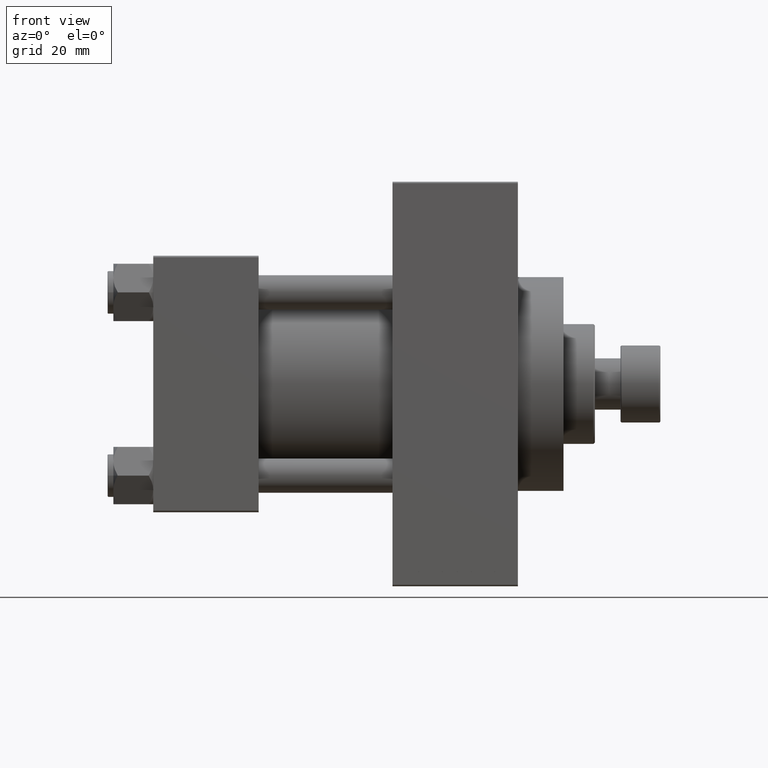
[diagram: clean part render]
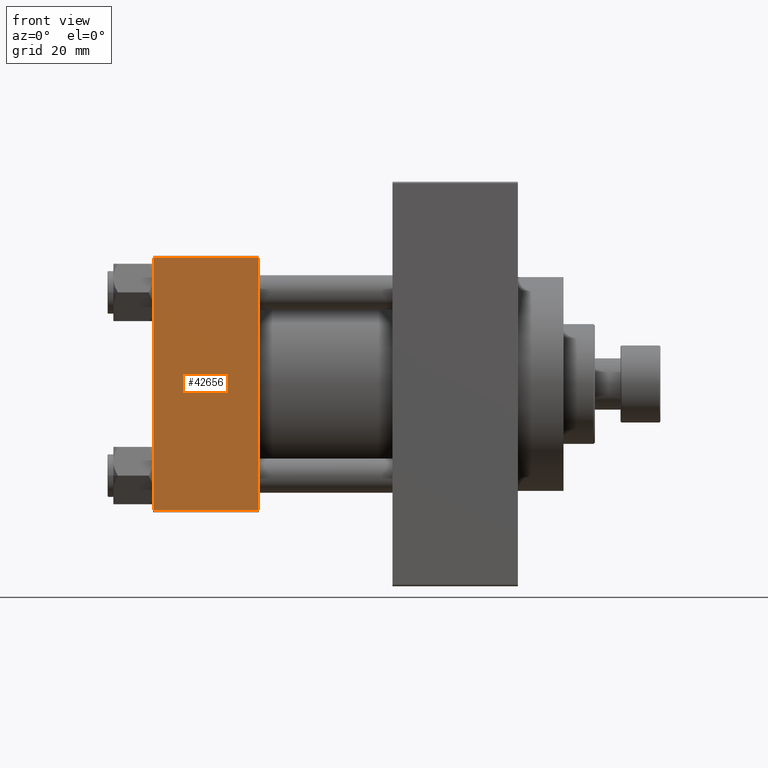
[diagram: same view with one face highlighted and labeled with its STEP entity id]
A machine part, front view. The second image highlights one B-rep face of the part: STEP entity #42656.
In plain terms, the highlighted planar face has unit normal (0, 1, 0).
Its self-contained STEP definition (entity closure, byte-faithful):
#4694 = CARTESIAN_POINT ( 'NONE',  ( 0.000000000000000000, -45.00000000000000000, -44.49999999999995737 ) ) ;
#5580 = VECTOR ( 'NONE', #43725, 1000.000000000000000 ) ;
#9012 = CARTESIAN_POINT ( 'NONE',  ( 0.000000000000000000, -45.00000000000000711, 44.49999999999997158 ) ) ;
#9715 = LINE ( 'NONE', #24670, #45741 ) ;
#10522 = VERTEX_POINT ( 'NONE', #42482 ) ;
#14037 = ORIENTED_EDGE ( 'NONE', *, *, #36732, .F. ) ;
#14077 = CARTESIAN_POINT ( 'NONE',  ( 0.000000000000000000, -45.00000000000000711, 45.00000000000000000 ) ) ;
#19580 = DIRECTION ( 'NONE',  ( -0.000000000000000000, 1.000000000000000000, 7.709882115452478166E-17 ) ) ;
#19817 = PLANE ( 'NONE',  #39775 ) ;
#20888 = VECTOR ( 'NONE', #36743, 1000.000000000000000 ) ;
#20964 = ORIENTED_EDGE ( 'NONE', *, *, #26825, .T. ) ;
#22773 = VECTOR ( 'NONE', #23147, 1000.000000000000000 ) ;
#23147 = DIRECTION ( 'NONE',  ( -1.000000000000000000, 0.000000000000000000, 0.000000000000000000 ) ) ;
#23642 = EDGE_CURVE ( 'NONE', #41778, #36611, #41466, .T. ) ;
#24670 = CARTESIAN_POINT ( 'NONE',  ( 37.00000000000000000, -45.00000000000000711, 45.00000000000000000 ) ) ;
#25904 = ORIENTED_EDGE ( 'NONE', *, *, #23642, .T. ) ;
#26825 = EDGE_CURVE ( 'NONE', #36605, #10522, #29985, .T. ) ;
#29203 = EDGE_CURVE ( 'NONE', #36611, #36605, #32399, .T. ) ;
#29985 = LINE ( 'NONE', #40601, #20888 ) ;
#31704 = EDGE_LOOP ( 'NONE', ( #31807, #20964, #14037, #25904 ) ) ;
#31807 = ORIENTED_EDGE ( 'NONE', *, *, #29203, .T. ) ;
#32399 = LINE ( 'NONE', #14077, #5580 ) ;
#34527 = DIRECTION ( 'NONE',  ( 0.000000000000000000, -7.709882115452478166E-17, 1.000000000000000000 ) ) ;
#34770 = CARTESIAN_POINT ( 'NONE',  ( 37.00000000000000000, -45.00000000000000711, 45.00000000000000000 ) ) ;
#36605 = VERTEX_POINT ( 'NONE', #4694 ) ;
#36611 = VERTEX_POINT ( 'NONE', #9012 ) ;
#36732 = EDGE_CURVE ( 'NONE', #41778, #10522, #9715, .T. ) ;
#36743 = DIRECTION ( 'NONE',  ( 1.000000000000000000, 0.000000000000000000, 0.000000000000000000 ) ) ;
#37363 = CARTESIAN_POINT ( 'NONE',  ( 37.00000000000000000, -45.00000000000000711, 44.49999999999997158 ) ) ;
#39775 = AXIS2_PLACEMENT_3D ( 'NONE', #34770, #19580, #34527 ) ;
#40601 = CARTESIAN_POINT ( 'NONE',  ( 37.00000000000000000, -45.00000000000000000, -44.49999999999998579 ) ) ;
#41466 = LINE ( 'NONE', #37363, #22773 ) ;
#41778 = VERTEX_POINT ( 'NONE', #46332 ) ;
#42276 = DIRECTION ( 'NONE',  ( 0.000000000000000000, 7.709882115452476934E-17, -1.000000000000000000 ) ) ;
#42482 = CARTESIAN_POINT ( 'NONE',  ( 37.00000000000000000, -45.00000000000000000, -44.49999999999995737 ) ) ;
#42656 = ADVANCED_FACE ( 'NONE', ( #46351 ), #19817, .F. ) ;
#43725 = DIRECTION ( 'NONE',  ( 0.000000000000000000, 7.709882115452476934E-17, -1.000000000000000000 ) ) ;
#45741 = VECTOR ( 'NONE', #42276, 1000.000000000000000 ) ;
#46332 = CARTESIAN_POINT ( 'NONE',  ( 37.00000000000000000, -45.00000000000000711, 44.49999999999997158 ) ) ;
#46351 = FACE_OUTER_BOUND ( 'NONE', #31704, .T. ) ;